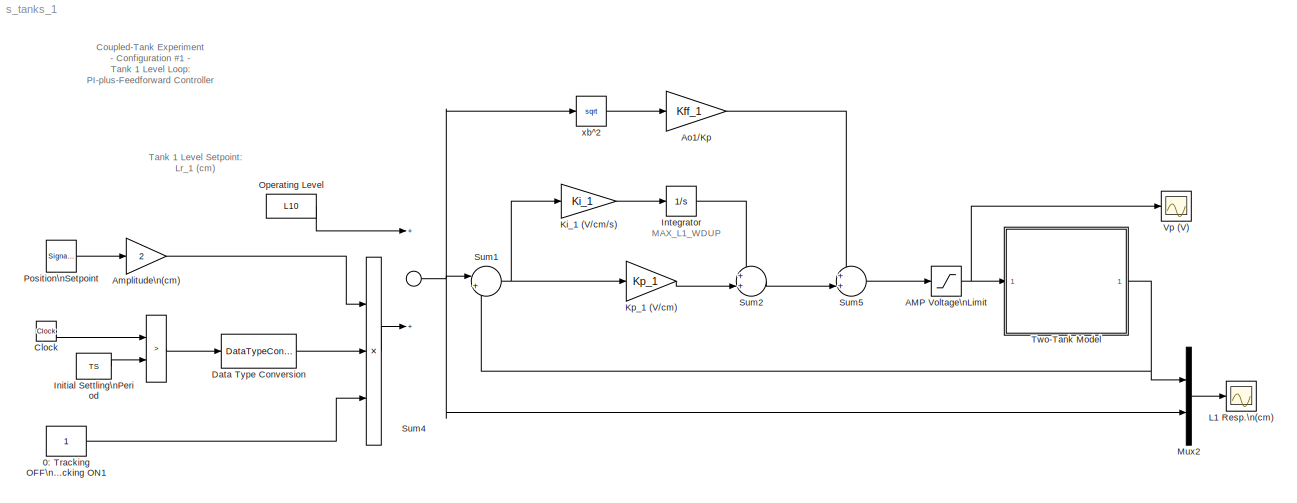
MODEL s_tanks_1
KIND model
BLOCK [Product]    
  CollapseMode = All dimensions
  Inputs = 3
  OutDataType = sfix(16)
  OutScaling = 2^0
  Ports = [3, 1]
BLOCK [RelationalOperator]     
  Operator = >
BLOCK [Constant] 0: Tracking OFF\n1: Tracking ON1
  OutDataType = sfix(16)
  OutScaling = 2^0
BLOCK [Saturate] AMP Voltage\nLimit
  LowerLimit = 0
  UpperLimit = VMAX_AMP
BLOCK [Gain] Amplitude\n(cm)
  Gain = 2
  OutDataType = sfix(16)
  OutScaling = 2^0
  ParameterDataType = sfix(16)
  ParameterScaling = 2^0
BLOCK [Gain] Ao1//Kp
  Gain = Kff_1
  OutDataType = sfix(16)
  OutScaling = 2^0
  ParameterDataType = sfix(16)
  ParameterScaling = 2^0
BLOCK [Clock] Clock
  Decimation = 10
BLOCK [DataTypeConversion] Data Type Conversion
  OutDataType = sfix(16)
  OutScaling = 2^0
  RndMeth = Floor
  SaturateOnIntegerOverflow = off
BLOCK [Constant] Initial Settling\nPeriod
  OutDataType = sfix(16)
  OutScaling = 2^0
  Value = TS
BLOCK [Integrator] Integrator
  LimitOutput = on
  LowerSaturationLimit = - MAX_L1_WDUP
  Ports = [1, 1]
  UpperSaturationLimit = MAX_L1_WDUP
BLOCK [Gain] Ki_1 (V//cm//s)
  Gain = Ki_1
  OutDataType = sfix(16)
  OutScaling = 2^0
  ParameterDataType = sfix(16)
  ParameterScaling = 2^0
BLOCK [Gain] Kp_1 (V//cm)
  Gain = Kp_1
  OutDataType = sfix(16)
  OutScaling = 2^0
  ParameterDataType = sfix(16)
  ParameterScaling = 2^0
BLOCK [Scope] L1 Resp.\n(cm)
  DataFormat = Array
  Floating = off
  LimitDataPoints = off
  NumInputPorts = 1
  Ports = [1]
  SampleTime = 0
  SaveName = data_L1
  SaveToWorkspace = on
  TickLabels = on
  TimeRange = 60
  YMax = 20
  YMin = 10
BLOCK [Mux] Mux2
  DisplayOption = bar
  Inputs = 2
  Ports = [2, 1]
BLOCK [Constant] Operating Level
  OutDataType = sfix(16)
  OutScaling = 2^0
  Value = L10
BLOCK [SignalGenerator] Position\nSetpoint
  Frequency = 0.05
  Ports = [0, 1]
  WaveForm = square
BLOCK [Sum] Sum1
  CollapseMode = All dimensions
  IconShape = round
  Inputs = |+-
  OutDataType = sfix(16)
  OutScaling = 2^0
  Ports = [2, 1]
BLOCK [Sum] Sum2
  CollapseMode = All dimensions
  IconShape = round
  Inputs = ++|
  OutDataType = sfix(16)
  OutScaling = 2^0
  Ports = [2, 1]
BLOCK [Sum] Sum4
  CollapseMode = All dimensions
  OutDataType = sfix(16)
  OutScaling = 2^0
  Ports = [2, 1]
BLOCK [Sum] Sum5
  CollapseMode = All dimensions
  IconShape = round
  Inputs = ++|
  OutDataType = sfix(16)
  OutScaling = 2^0
  Ports = [2, 1]
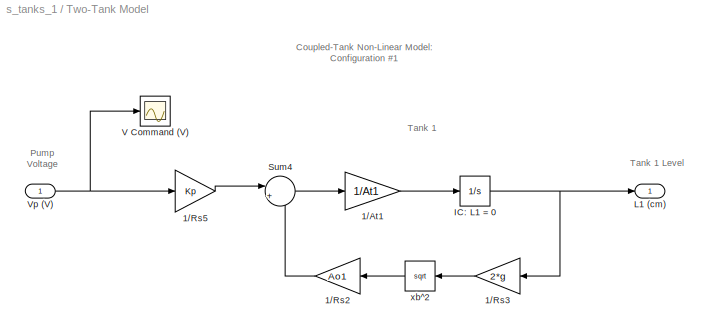
BLOCK [SubSystem] Two-Tank Model
  FunctionWithSeparateData = off
  MinAlgLoopOccurrences = off
  Ports = [1, 1]
  RTWSystemCode = Auto
BLOCK [Gain] Two-Tank Model/1//At1
  Gain = 1/At1
  OutDataType = sfix(16)
  OutScaling = 2^0
  ParameterDataType = sfix(16)
  ParameterScaling = 2^0
BLOCK [Gain] Two-Tank Model/1//Rs2
  Gain = Ao1
  OutDataType = sfix(16)
  OutScaling = 2^0
  ParameterDataType = sfix(16)
  ParameterScaling = 2^0
BLOCK [Gain] Two-Tank Model/1//Rs3
  Gain = 2*g
  OutDataType = sfix(16)
  OutScaling = 2^0
  ParameterDataType = sfix(16)
  ParameterScaling = 2^0
BLOCK [Gain] Two-Tank Model/1//Rs5
  Gain = Kp
  OutDataType = sfix(16)
  OutScaling = 2^0
  ParameterDataType = sfix(16)
  ParameterScaling = 2^0
BLOCK [Integrator] Two-Tank Model/IC: L1 = 0
  Ports = [1, 1]
BLOCK [Outport] Two-Tank Model/L1 (cm)
  IconDisplay = Port number
  InitialOutput = 0
  OutDataType = sfix(16)
  OutScaling = 2^0
BLOCK [Sum] Two-Tank Model/Sum4
  CollapseMode = All dimensions
  IconShape = round
  Inputs = |+-
  OutDataType = sfix(16)
  OutScaling = 2^0
  Ports = [2, 1]
BLOCK [Scope] Two-Tank Model/V Command (V)
  DataFormat = Array
  Floating = off
  NumInputPorts = 1
  Ports = [1]
  SampleTime = 0
  SaveName = ScopeData2
  TickLabels = on
  TimeRange = 1.000000
  YMax = 1
  YMin = -1
BLOCK [Inport] Two-Tank Model/Vp (V)
  IconDisplay = Port number
  OutDataType = sfix(16)
  OutScaling = 2^0
BLOCK [Math] Two-Tank Model/xb^2
  Operator = sqrt
  OutDataType = sfix(16)
  OutScaling = 2^0
  Ports = [1, 1]
BLOCK [Scope] Vp (V) 
  DataFormat = Array
  Floating = off
  LimitDataPoints = off
  NumInputPorts = 1
  Ports = [1]
  SampleTime = 0
  SaveName = data_Vp
  SaveToWorkspace = on
  TickLabels = on
  TimeRange = 60
  YMax = 24
BLOCK [Math] xb^2
  Operator = sqrt
  OutDataType = sfix(16)
  OutScaling = 2^0
  Ports = [1, 1]
ANNOTATION (root): Coupled-Tank Experiment\n- Configuration #1 -\nTank 1 Level Loop:\nPI-plus-Feedforward Controller
ANNOTATION (root): MAX_L1_WDUP
ANNOTATION (root): Tank 1 Level Setpoint:\nLr_1 (cm)
ANNOTATION Two-Tank Model: Coupled-Tank Non-Linear Model:\nConfiguration #1
ANNOTATION Two-Tank Model: Pump\nVoltage
ANNOTATION Two-Tank Model: Tank 1
ANNOTATION Two-Tank Model: Tank 1 Level
LINE     :1 -> Data Type Conversion:1
LINE    :1 -> Sum4:2
LINE 0: Tracking OFF\n1: Tracking ON1:1 ->    :3
NET AMP Voltage\nLimit:1 -> Two-Tank Model:1, Vp (V) :1
LINE Amplitude\n(cm):1 ->    :1
LINE Ao1//Kp:1 -> Sum5:1
LINE Clock:1 ->     :1
LINE Data Type Conversion:1 ->    :2
LINE Initial Settling\nPeriod:1 ->     :2
LINE Integrator:1 -> Sum2:1
LINE Ki_1 (V//cm//s):1 -> Integrator:1
LINE Kp_1 (V//cm):1 -> Sum2:2
LINE Mux2:1 -> L1 Resp.\n(cm):1
LINE Operating Level:1 -> Sum4:1
LINE Position\nSetpoint:1 -> Amplitude\n(cm):1
NET Sum1:1 -> Ki_1 (V//cm//s):1, Kp_1 (V//cm):1
LINE Sum2:1 -> Sum5:2
NET Sum4:1 -> Mux2:2, Sum1:1, xb^2:1
LINE Sum5:1 -> AMP Voltage\nLimit:1
LINE Two-Tank Model/1//At1:1 -> Two-Tank Model/IC: L1 = 0:1
LINE Two-Tank Model/1//Rs2:1 -> Two-Tank Model/Sum4:2
LINE Two-Tank Model/1//Rs3:1 -> Two-Tank Model/xb^2:1
LINE Two-Tank Model/1//Rs5:1 -> Two-Tank Model/Sum4:1
NET Two-Tank Model/IC: L1 = 0:1 -> Two-Tank Model/1//Rs3:1, Two-Tank Model/L1 (cm):1
LINE Two-Tank Model/Sum4:1 -> Two-Tank Model/1//At1:1
NET Two-Tank Model/Vp (V):1 -> Two-Tank Model/1//Rs5:1, Two-Tank Model/V Command (V):1
LINE Two-Tank Model/xb^2:1 -> Two-Tank Model/1//Rs2:1
NET Two-Tank Model:1 -> Mux2:1, Sum1:2
LINE xb^2:1 -> Ao1//Kp:1
note: NET lines group one-source signal fan-out (src -> all destinations, sorted); 1:1 wires keep LINE
